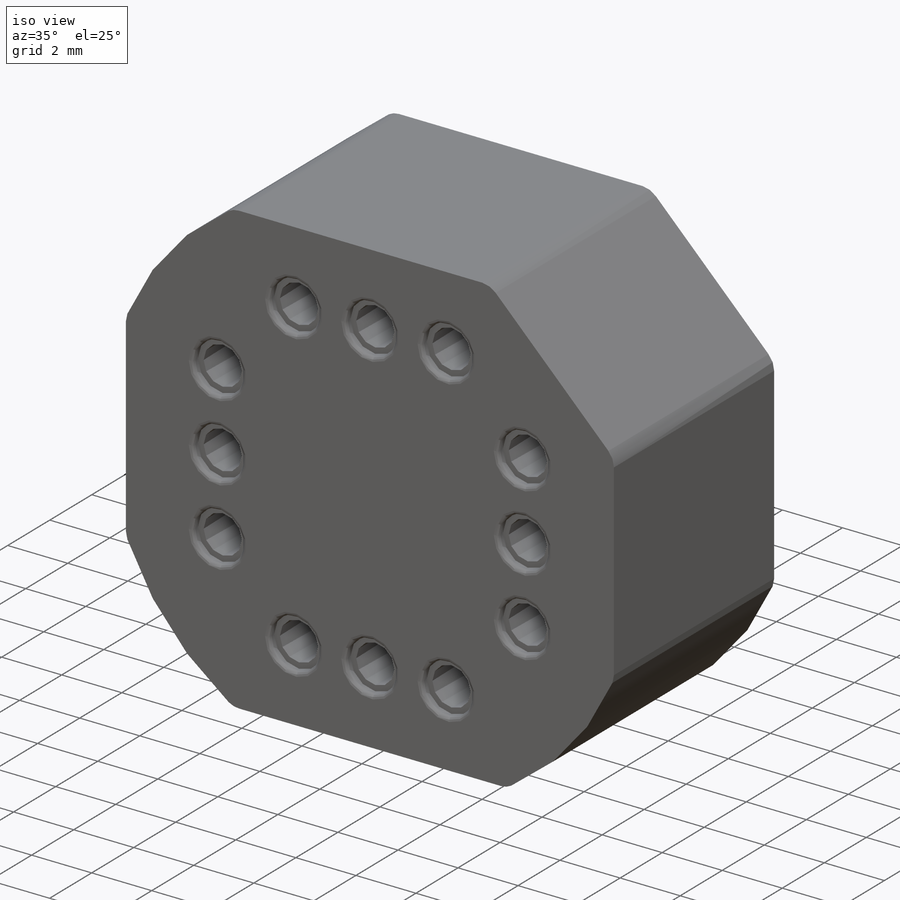
[diagram: iso view]
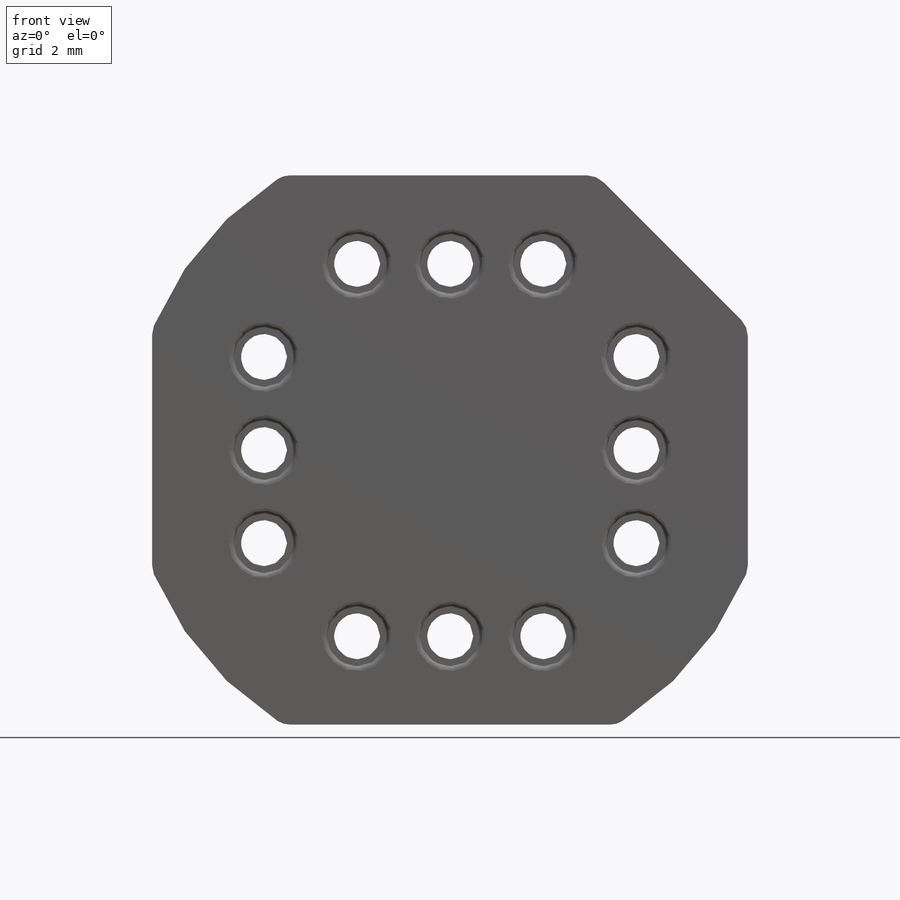
[diagram: front view]
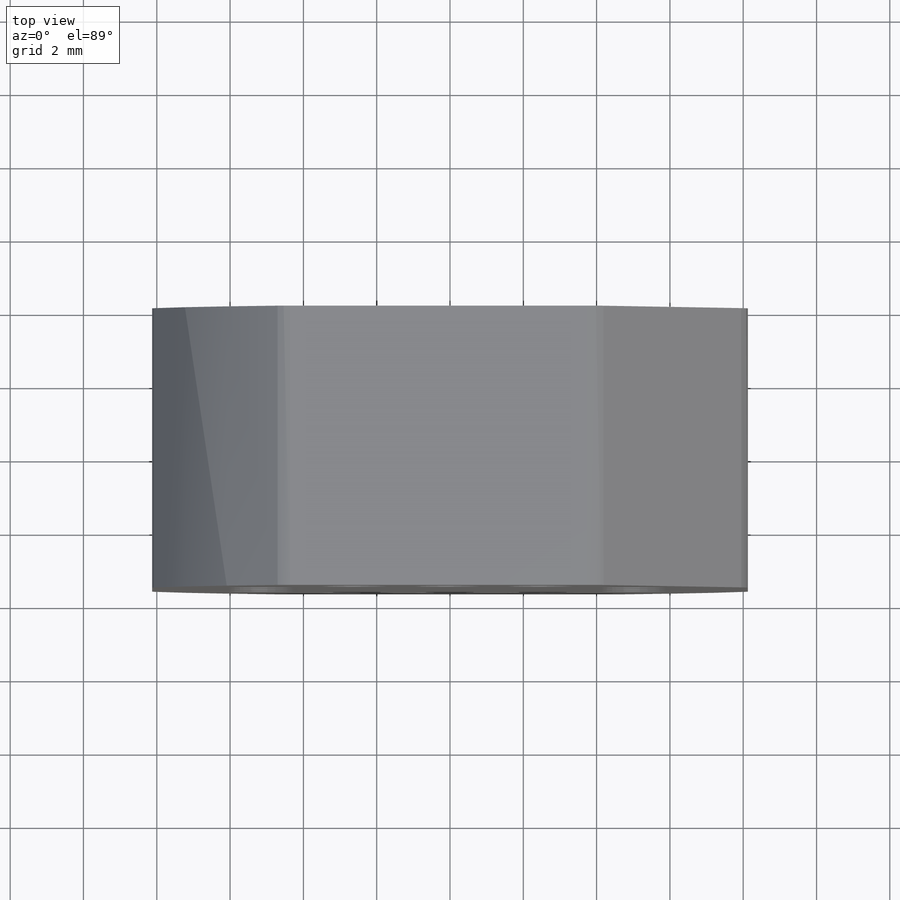
[diagram: top view]
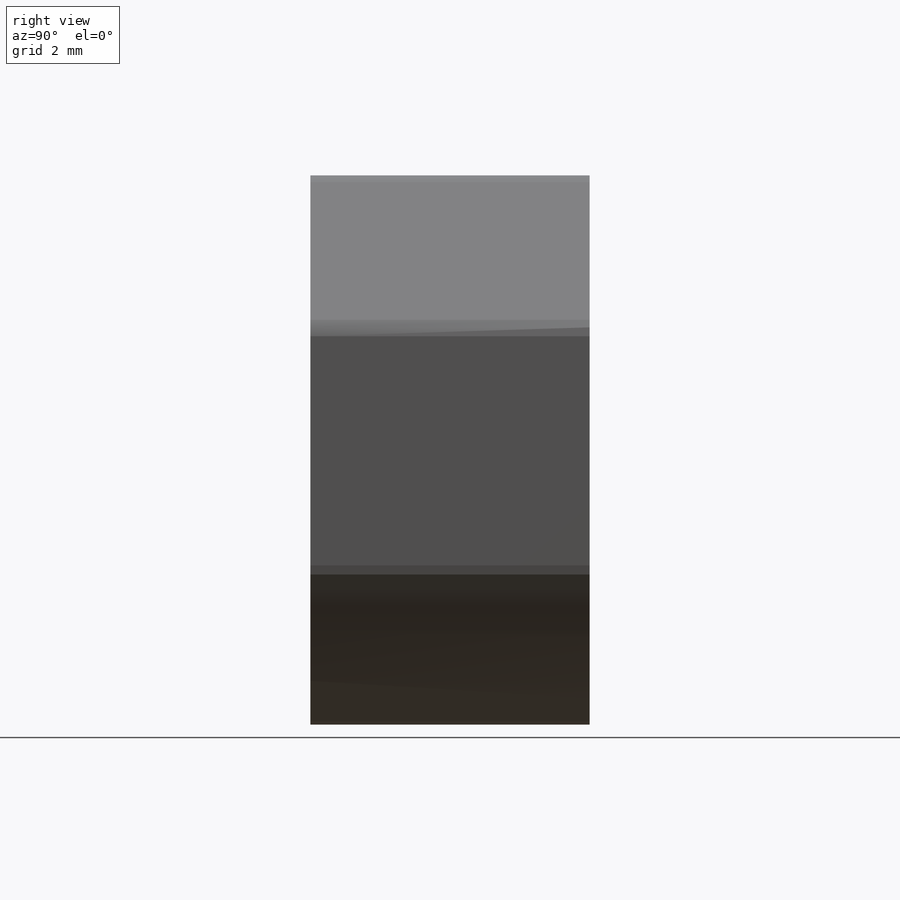
[diagram: right view]
SOLIDWORKS PART (.sldprt)
format: sldprt  version: not decoded by parser v0  size: 479,232 bytes
history: native  units: mm
features: fillet x3, sketch x2, material x1, extrude x1, cut_extrude x1, chamfer x1 + 1 further entry (+10 scaffold rows collapsed)
feature tree (20):
  scaffold x10  (default folders/planes/origin — collapsed)
  material  "Material <not specified>"
  "Origin"  ID=392984584
  sketch  "Sketch1"  dims[c1.D3=1.27mm c1.D4=1.27mm c1.D5=1.27mm c1.D11=0.9906mm c1.D14=~9.130791mm c1.D16=1.27mm c1.D17=1.27mm c1.D18=1.27mm c1.D19=1.27mm c1.D20=1.27mm c1.D21=1.27mm c1.D22=1.27mm c1.D23=1.27mm c1.D24=1.27mm c1.D25=1.27mm c1.D1=6.223mm c1.D2=12.573mm c2.D3=2.667mm c2.D4=2.667mm c2.D6=2.54mm c2.D7=5.08mm c2.D8=2.54mm c3.D6=2.54mm c3.D9=1.8415mm c3.D10=2.54mm c3.D8=5.08mm c3.D11=6.2865mm c3.D2=7.493mm c4.D9=7.493mm c4.D12=8.128mm c4.D13=8.128mm c4.D14=~7.630251mm c5.D14=225.0deg c5.D15=8.128mm c5.D9=7.493mm c5.D11=5.08mm c5.D25=2.54mm c5.D26=2.54mm c5.D27=5.08mm c5.D28=5.08mm c5.D29=2.54mm c5.D30=5.08mm c5.D31=5.08mm c5.D32=2.54mm c5.D33=2.54mm c5.D34=2.54mm c5.D35=5.08mm c5.D36=5.08mm c5.D37=2.54mm c5.D38=2.54mm c5.D39=2.54mm]
  extrude  "Boss-Extrude1"  Depth=7.62mm
  fillet  "Fillet1"  Radius=0.635mm
  sketch  "Sketch2"  dims[c1.D1=1.651mm c1.D2=1.651mm c1.D3=1.651mm c1.D24=1.651mm c1.D25=1.651mm c1.D26=1.651mm c1.D27=1.651mm c1.D28=1.651mm c1.D29=1.651mm c1.D30=1.651mm c1.D31=1.651mm c1.D32=1.651mm c1.D4=2.54mm c1.D5=2.54mm c1.D6=2.54mm c1.D7=1.8415mm c1.D8=~6.29412mm c2.D4=5.08mm c2.D5=5.08mm c2.D6=5.08mm c2.D7=5.08mm c2.D8=5.08mm c2.D9=5.08mm c2.D10=5.08mm c2.D11=5.08mm c2.D12=2.54mm c2.D13=2.54mm c3.D12=2.54mm c3.D13=2.54mm c3.D14=2.54mm c3.D15=2.54mm c3.D16=5.08mm c3.D17=5.08mm c3.D18=5.08mm c3.D19=5.08mm c3.D20=2.54mm c3.D21=2.54mm c3.D22=5.08mm c3.D23=5.08mm c3.D33=2.54mm c3.D4=2.54mm]
  cut_extrude  "Cut-Extrude1"  Depth=0.254mm
  fillet  "Fillet3"  Radius=0.127mm
  chamfer  "Chamfer1"  Distance=0.3302mm Angle=45deg
  fillet  "Fillet5"  Radius=0.254mm
decode coverage: 8 of 8 modeling features carry decoded parameters; 1 rows unclassified (native names shown)
note: ~ marks probable driven/reference dimensions
note: suppression state not decoded; provenance and decode notes live in map.json
